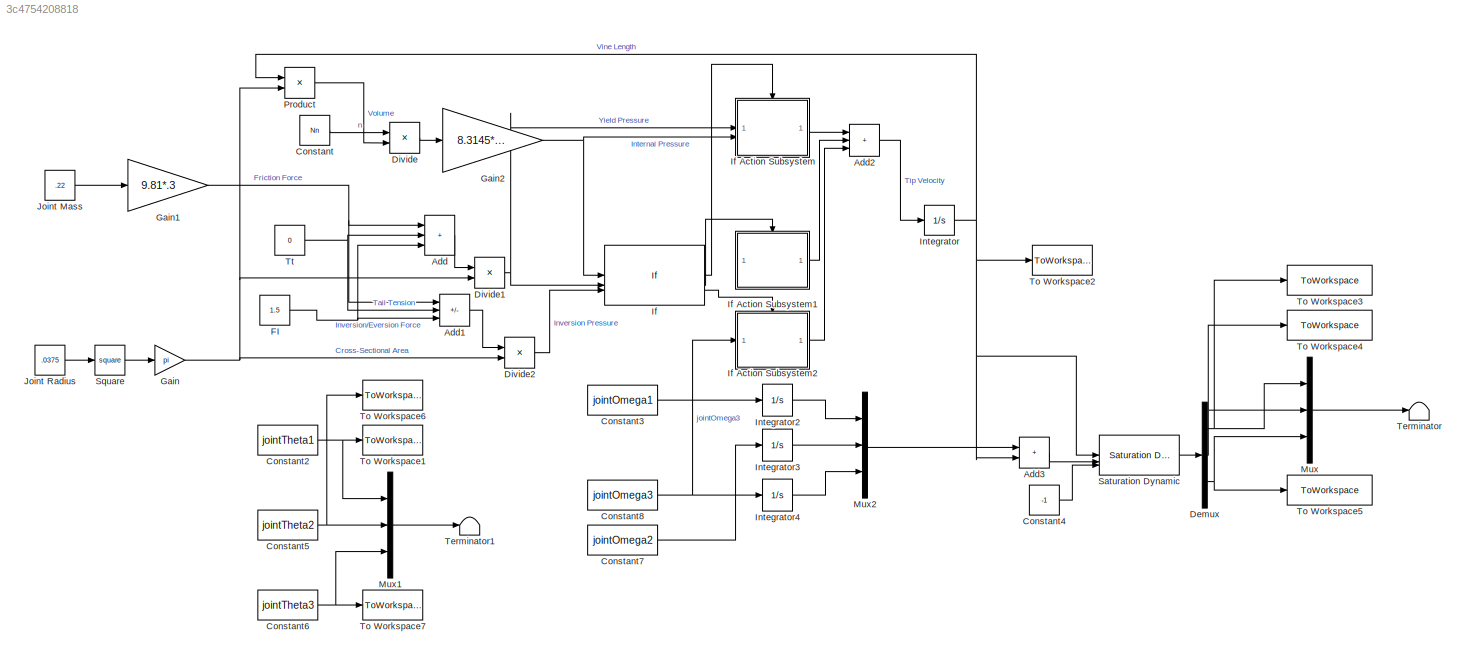
MODEL slx_3c4754208818
KIND model
CONFIG AbsTol = auto
CONFIG EnableMultiTasking = off
CONFIG FixedStep = auto
CONFIG MaxStep = auto
CONFIG MinStep = auto
CONFIG RelTol = 1e-3
CONFIG SampleTimeConstraint = Unconstrained
CONFIG SolverName = VariableStepAuto
CONFIG StartTime = 0.0
CONFIG StopTime = 10.0
WORKSPACE source: mxarray member
WORKSPACE Nn: Simulink.Parameter (value not decoded)
WORKSPACE Sig: Simulink.Signal (value not decoded)
WORKSPACE jointOmega: Simulink.Parameter (value not decoded)
WORKSPACE jointOmega1: Simulink.Parameter (value not decoded)
WORKSPACE jointOmega2: Simulink.Parameter (value not decoded)
WORKSPACE jointOmega3: Simulink.Parameter (value not decoded)
WORKSPACE jointTheta: Simulink.Parameter (value not decoded)
WORKSPACE jointTheta1: Simulink.Parameter (value not decoded)
WORKSPACE jointTheta2: Simulink.Parameter (value not decoded)
WORKSPACE jointTheta3: Simulink.Parameter (value not decoded)
BLOCK [Sum] Add
  IconShape = rectangular
  Inputs = +++
BLOCK [Sum] Add1
  IconShape = rectangular
  Inputs = ++-
BLOCK [Sum] Add2
  IconShape = rectangular
  Inputs = +++
BLOCK [Sum] Add3
  IconShape = rectangular
BLOCK [Constant] Constant
  Value = Nn
BLOCK [Constant] Constant2
  Value = jointTheta1
BLOCK [Constant] Constant3
  Value = jointOmega1
BLOCK [Constant] Constant4
  Value = -1
BLOCK [Constant] Constant5
  Value = jointTheta2
BLOCK [Constant] Constant6
  Value = jointTheta3
BLOCK [Constant] Constant7
  Value = jointOmega2
BLOCK [Constant] Constant8
  Value = jointOmega3
BLOCK [Demux] Demux
  Outputs = 3
BLOCK [Product] Divide
  Inputs = */
BLOCK [Product] Divide1
  Inputs = */
BLOCK [Product] Divide2
  Inputs = */
BLOCK [Constant] FI
  Value = 1.5
BLOCK [Gain] Gain
  Gain = pi
BLOCK [Gain] Gain1
  Gain = 9.81*.3
BLOCK [Gain] Gain2
  Gain = 8.3145*295
BLOCK [If] If
  ElseIfExpressions = u1 < u3
  IfExpression = u1 > u2
  NumInputs = 3
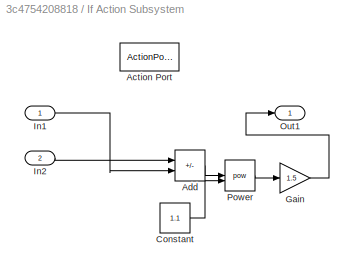
BLOCK [SubSystem] If Action Subsystem
  TreatAsAtomicUnit = on
BLOCK [ActionPort] If Action Subsystem/Action Port
  ActionPortLabel = if(u1 > u2)
BLOCK [Sum] If Action Subsystem/Add
  IconShape = rectangular
  Inputs = +-
BLOCK [Constant] If Action Subsystem/Constant
  Value = 1.1
BLOCK [Gain] If Action Subsystem/Gain
  Gain = 1.5
BLOCK [Inport] If Action Subsystem/In1
BLOCK [Inport] If Action Subsystem/In2
  Port = 2
BLOCK [Outport] If Action Subsystem/Out1
BLOCK [Math] If Action Subsystem/Power
  Operator = pow
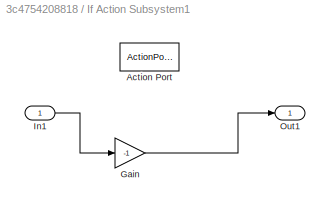
BLOCK [SubSystem] If Action Subsystem1
  TreatAsAtomicUnit = on
BLOCK [ActionPort] If Action Subsystem1/Action Port
  ActionPortLabel = elseif(u1 < u3)
BLOCK [Gain] If Action Subsystem1/Gain
  Gain = -1
BLOCK [Inport] If Action Subsystem1/In1
BLOCK [Outport] If Action Subsystem1/Out1
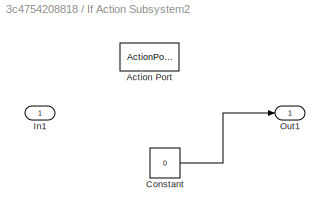
BLOCK [SubSystem] If Action Subsystem2
  TreatAsAtomicUnit = on
BLOCK [ActionPort] If Action Subsystem2/Action Port
  ActionPortLabel = else
BLOCK [Constant] If Action Subsystem2/Constant
  Value = 0
BLOCK [Inport] If Action Subsystem2/In1
BLOCK [Outport] If Action Subsystem2/Out1
BLOCK [Integrator] Integrator
  InitialCondition = 1
BLOCK [Integrator] Integrator2
  InitialCondition = -.9
BLOCK [Integrator] Integrator3
  InitialCondition = -.6
BLOCK [Integrator] Integrator4
  InitialCondition = -.3
BLOCK [Constant] Joint Mass
  Value = .22
BLOCK [Constant] Joint Radius
  Value = .0375
BLOCK [Mux] Mux
  DisplayOption = bar
  Inputs = 3
BLOCK [Mux] Mux1
  DisplayOption = bar
  Inputs = 3
BLOCK [Mux] Mux2
  DisplayOption = bar
  Inputs = 3
BLOCK [Product] Product
BLOCK [Reference] Saturation Dynamic  REF=simulink/Discontinuities/Saturation
Dynamic
  SourceBlock = simulink/Discontinuities/Saturation\nDynamic
  SourceType = Saturation Dynamic
BLOCK [Math] Square
  Operator = square
BLOCK [Terminator] Terminator
BLOCK [Terminator] Terminator1
BLOCK [ToWorkspace] To Workspace1
  FixptAsFi = on
  MaxDataPoints = inf
  SampleTime = -1
  SaveFormat = Timeseries
  VariableName = jointTheta1
BLOCK [ToWorkspace] To Workspace2
  FixptAsFi = on
  MaxDataPoints = inf
  SampleTime = -1
  SaveFormat = Timeseries
  VariableName = totalLength
BLOCK [ToWorkspace] To Workspace3
  FixptAsFi = on
  MaxDataPoints = inf
  SampleTime = -1
  SaveFormat = Timeseries
  VariableName = jointDisplacement1
BLOCK [ToWorkspace] To Workspace4
  FixptAsFi = on
  MaxDataPoints = inf
  SampleTime = -1
  SaveFormat = Timeseries
  VariableName = jointDisplacement2
BLOCK [ToWorkspace] To Workspace5
  FixptAsFi = on
  MaxDataPoints = inf
  SampleTime = -1
  SaveFormat = Timeseries
  VariableName = jointDisplacement3
BLOCK [ToWorkspace] To Workspace6
  FixptAsFi = on
  MaxDataPoints = inf
  SampleTime = -1
  SaveFormat = Timeseries
  VariableName = jointTheta2
BLOCK [ToWorkspace] To Workspace7
  FixptAsFi = on
  MaxDataPoints = inf
  SampleTime = -1
  SaveFormat = Timeseries
  VariableName = jointTheta3
BLOCK [Constant] Tt
  Value = 0
LINE Add1:1 -> Divide2:1
LINE Add2:1 -> Integrator:1
LINE Add3:1 -> Saturation Dynamic:2
LINE Add:1 -> Divide1:1
NET Constant2:1 -> Mux1:1, To Workspace1:1
LINE Constant3:1 -> Integrator2:1
LINE Constant4:1 -> Saturation Dynamic:3
NET Constant5:1 -> Mux1:2, To Workspace6:1
NET Constant6:1 -> Mux1:3, To Workspace7:1
LINE Constant7:1 -> Integrator3:1
NET Constant8:1 -> If Action Subsystem2:1, Integrator4:1
LINE Constant:1 -> Divide:1
NET Demux:1 -> Mux:1, To Workspace3:1
NET Demux:2 -> Mux:2, To Workspace4:1
NET Demux:3 -> Mux:3, To Workspace5:1
NET Divide1:1 -> If Action Subsystem:1, If:2
LINE Divide2:1 -> If:3
LINE Divide:1 -> Gain2:1
NET FI:1 -> Add1:3, Add:3
NET Gain1:1 -> Add1:1, Add:1
NET Gain2:1 -> If Action Subsystem:2, If:1
NET Gain:1 -> Divide1:2, Divide2:2, Product:2
LINE If Action Subsystem/Add:1 -> If Action Subsystem/Power:1
LINE If Action Subsystem/Constant:1 -> If Action Subsystem/Power:2
LINE If Action Subsystem/Gain:1 -> If Action Subsystem/Out1:1
LINE If Action Subsystem/In1:1 -> If Action Subsystem/Add:2
LINE If Action Subsystem/In2:1 -> If Action Subsystem/Add:1
LINE If Action Subsystem/Power:1 -> If Action Subsystem/Gain:1
LINE If Action Subsystem1/Gain:1 -> If Action Subsystem1/Out1:1
LINE If Action Subsystem1/In1:1 -> If Action Subsystem1/Gain:1
LINE If Action Subsystem1:1 -> Add2:2
LINE If Action Subsystem2/Constant:1 -> If Action Subsystem2/Out1:1
LINE If Action Subsystem2:1 -> Add2:3
LINE If Action Subsystem:1 -> Add2:1
LINE If:1 -> If Action Subsystem:ifaction
LINE If:2 -> If Action Subsystem1:ifaction
LINE If:3 -> If Action Subsystem2:ifaction
LINE Integrator2:1 -> Mux2:1
LINE Integrator3:1 -> Mux2:2
LINE Integrator4:1 -> Mux2:3
NET Integrator:1 -> Add3:2, Product:1, Saturation Dynamic:1, To Workspace2:1
LINE Joint Mass:1 -> Gain1:1
LINE Joint Radius:1 -> Square:1
LINE Mux1:1 -> Terminator1:1
LINE Mux2:1 -> Add3:1
LINE Mux:1 -> Terminator:1
LINE Product:1 -> Divide:2
LINE Saturation Dynamic:1 -> Demux:1
LINE Square:1 -> Gain:1
NET Tt:1 -> Add1:2, Add:2
note: NET lines group one-source signal fan-out (src -> all destinations, sorted); 1:1 wires keep LINE
